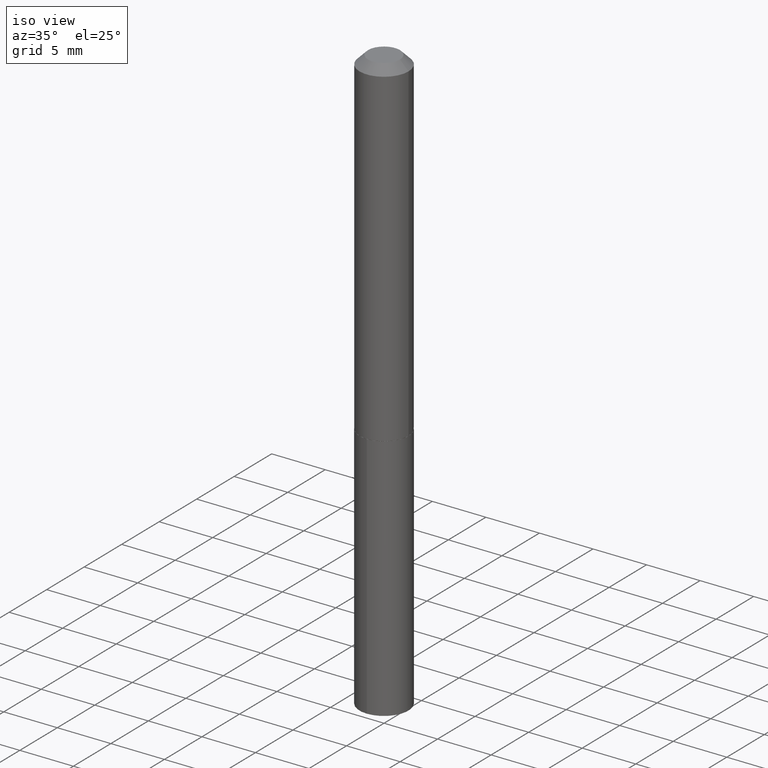
[diagram: clean part render]
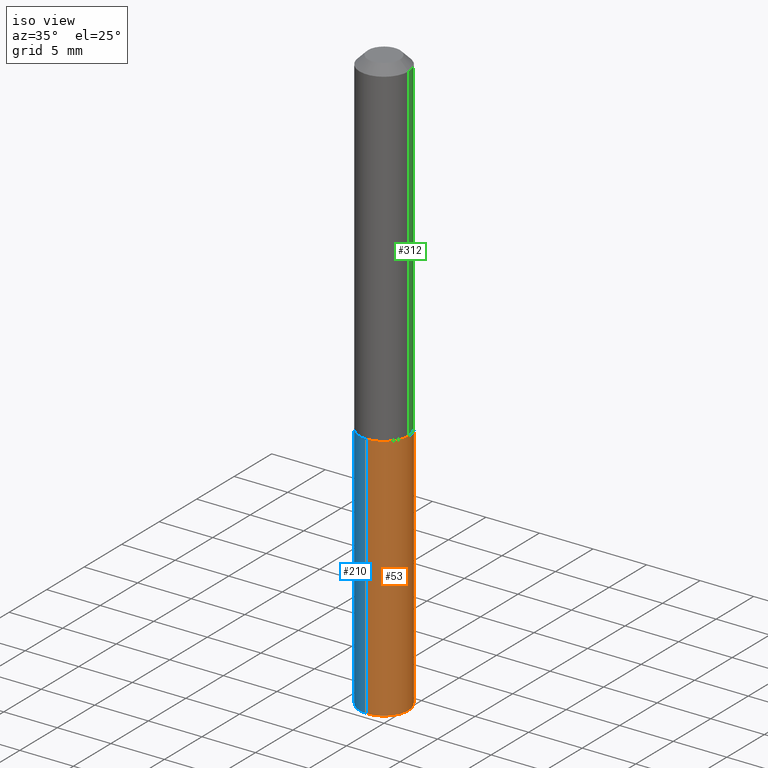
[diagram: same view with three faces highlighted in distinct colors, each labeled with its STEP entity id]
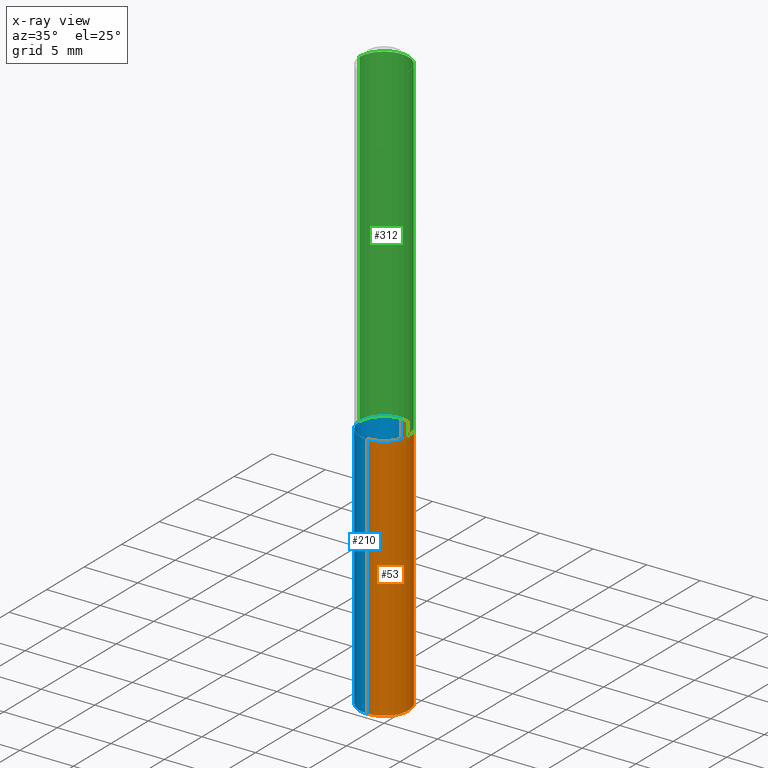
[diagram: x-ray of the same camera — body ghosted, the three highlighted faces saturated]
A machine part, iso view with three faces highlighted in distinct colors.
The next image is the same camera in x-ray (body ghosted, the three faces saturated) — at least one of them is partly hidden behind the body in this view.
Their STEP definitions:

[orange] entity #53 — the highlighted cylindrical surface (edge-blend (fillet) strip) has radius 2.286 mm, axis along (-0, 0, 1).
#5 = ORIENTED_EDGE ( 'NONE', *, *, #9, .F. ) ;
#8 = EDGE_CURVE ( 'NONE', #111, #316, #281, .T. ) ;
#9 = EDGE_CURVE ( 'NONE', #254, #341, #78, .T. ) ;
#10 = VECTOR ( 'NONE', #15, 39.37007874015748143 ) ;
#15 = DIRECTION ( 'NONE',  ( -2.445375402296307705E-29, 3.491615098528167601E-15, 1.000000000000000000 ) ) ;
#47 = EDGE_CURVE ( 'NONE', #254, #111, #56, .T. ) ;
#53 = ADVANCED_FACE ( 'NONE', ( #177 ), #206, .T. ) ;
#56 = CIRCLE ( 'NONE', #363, 0.08999999999999999667 ) ;
#60 = CARTESIAN_POINT ( 'NONE',  ( -6.284666409917110122E-16, -0.09000000000000749067, -2.154742678916041765 ) ) ;
#78 = LINE ( 'NONE', #288, #10 ) ;
#81 = DIRECTION ( 'NONE',  ( -2.445375402296307705E-29, 3.491615098528167601E-15, 1.000000000000000000 ) ) ;
#83 = DIRECTION ( 'NONE',  ( -6.982962677686265133E-15, -1.000000000000000000, 3.035386659626959132E-15 ) ) ;
#104 = DIRECTION ( 'NONE',  ( -6.982962677686265133E-15, -1.000000000000000000, 3.035386659626959132E-15 ) ) ;
#110 = AXIS2_PLACEMENT_3D ( 'NONE', #270, #81, #83 ) ;
#111 = VERTEX_POINT ( 'NONE', #349 ) ;
#129 = CARTESIAN_POINT ( 'NONE',  ( 3.038494991685032647E-29, -4.338165563512609129E-15, -1.242500000000000160 ) ) ;
#140 = DIRECTION ( 'NONE',  ( -2.445375402296307705E-29, 3.491615098528167601E-15, 1.000000000000000000 ) ) ;
#165 = EDGE_LOOP ( 'NONE', ( #373, #310, #204, #5 ) ) ;
#176 = VECTOR ( 'NONE', #140, 39.37007874015748143 ) ;
#177 = FACE_OUTER_BOUND ( 'NONE', #165, .T. ) ;
#180 = DIRECTION ( 'NONE',  ( -6.982962677686265133E-15, -1.000000000000000000, 3.035386659626959132E-15 ) ) ;
#191 = CARTESIAN_POINT ( 'NONE',  ( -6.284666409917335934E-16, -0.09000000000000432654, -1.242499999999999938 ) ) ;
#204 = ORIENTED_EDGE ( 'NONE', *, *, #383, .F. ) ;
#206 = CYLINDRICAL_SURFACE ( 'NONE', #110, 0.08999999999999999667 ) ;
#230 = CARTESIAN_POINT ( 'NONE',  ( 6.394884621841203175E-16, 0.08999999999999565292, -1.242500000000000382 ) ) ;
#233 = AXIS2_PLACEMENT_3D ( 'NONE', #129, #369, #104 ) ;
#254 = VERTEX_POINT ( 'NONE', #60 ) ;
#270 = CARTESIAN_POINT ( 'NONE',  ( 3.038494991685032647E-29, -4.338165563512609129E-15, -1.242500000000000160 ) ) ;
#281 = LINE ( 'NONE', #230, #176 ) ;
#288 = CARTESIAN_POINT ( 'NONE',  ( -6.284666409917335934E-16, -0.09000000000000432654, -1.242499999999999938 ) ) ;
#294 = DIRECTION ( 'NONE',  ( -2.445375402296307705E-29, 3.491615098528167601E-15, 1.000000000000000000 ) ) ;
#295 = CARTESIAN_POINT ( 'NONE',  ( 5.269270799631211184E-29, -7.523365874737645144E-15, -2.154742678916042209 ) ) ;
#310 = ORIENTED_EDGE ( 'NONE', *, *, #8, .T. ) ;
#316 = VERTEX_POINT ( 'NONE', #359 ) ;
#341 = VERTEX_POINT ( 'NONE', #191 ) ;
#349 = CARTESIAN_POINT ( 'NONE',  ( 6.394884621841425043E-16, 0.08999999999999243327, -2.154742678916042653 ) ) ;
#359 = CARTESIAN_POINT ( 'NONE',  ( 6.394884621841428987E-16, 0.08999999999999565292, -1.242500000000000382 ) ) ;
#363 = AXIS2_PLACEMENT_3D ( 'NONE', #295, #294, #180 ) ;
#369 = DIRECTION ( 'NONE',  ( -2.445375402296307705E-29, 3.491615098528167601E-15, 1.000000000000000000 ) ) ;
#373 = ORIENTED_EDGE ( 'NONE', *, *, #47, .T. ) ;
#381 = CIRCLE ( 'NONE', #233, 0.08999999999999999667 ) ;
#383 = EDGE_CURVE ( 'NONE', #341, #316, #381, .T. ) ;

[blue] entity #210 — the highlighted cylindrical surface (edge-blend (fillet) strip) has radius 2.286 mm, axis along (-0, 0, 1).
#2 = CARTESIAN_POINT ( 'NONE',  ( 5.269270799631211184E-29, -7.523365874737645144E-15, -2.154742678916042209 ) ) ;
#3 = DIRECTION ( 'NONE',  ( -6.982962677686265133E-15, -1.000000000000000000, 3.035386659626959132E-15 ) ) ;
#8 = EDGE_CURVE ( 'NONE', #111, #316, #281, .T. ) ;
#9 = EDGE_CURVE ( 'NONE', #254, #341, #78, .T. ) ;
#10 = VECTOR ( 'NONE', #15, 39.37007874015748143 ) ;
#15 = DIRECTION ( 'NONE',  ( -2.445375402296307705E-29, 3.491615098528167601E-15, 1.000000000000000000 ) ) ;
#16 = CIRCLE ( 'NONE', #128, 0.08999999999999999667 ) ;
#17 = DIRECTION ( 'NONE',  ( -2.445375402296307705E-29, 3.491615098528167601E-15, 1.000000000000000000 ) ) ;
#20 = AXIS2_PLACEMENT_3D ( 'NONE', #271, #367, #3 ) ;
#50 = DIRECTION ( 'NONE',  ( -6.982962677686265133E-15, -1.000000000000000000, 3.035386659626959132E-15 ) ) ;
#60 = CARTESIAN_POINT ( 'NONE',  ( -6.284666409917110122E-16, -0.09000000000000749067, -2.154742678916041765 ) ) ;
#78 = LINE ( 'NONE', #288, #10 ) ;
#80 = EDGE_CURVE ( 'NONE', #316, #341, #330, .T. ) ;
#95 = DIRECTION ( 'NONE',  ( -6.982962677686265133E-15, -1.000000000000000000, 3.035386659626959132E-15 ) ) ;
#111 = VERTEX_POINT ( 'NONE', #349 ) ;
#118 = CARTESIAN_POINT ( 'NONE',  ( 3.038494991685032647E-29, -4.338165563512609129E-15, -1.242500000000000160 ) ) ;
#127 = DIRECTION ( 'NONE',  ( -2.445375402296307705E-29, 3.491615098528167601E-15, 1.000000000000000000 ) ) ;
#128 = AXIS2_PLACEMENT_3D ( 'NONE', #2, #127, #95 ) ;
#140 = DIRECTION ( 'NONE',  ( -2.445375402296307705E-29, 3.491615098528167601E-15, 1.000000000000000000 ) ) ;
#162 = AXIS2_PLACEMENT_3D ( 'NONE', #118, #17, #50 ) ;
#164 = FACE_OUTER_BOUND ( 'NONE', #335, .T. ) ;
#174 = ORIENTED_EDGE ( 'NONE', *, *, #80, .F. ) ;
#176 = VECTOR ( 'NONE', #140, 39.37007874015748143 ) ;
#191 = CARTESIAN_POINT ( 'NONE',  ( -6.284666409917335934E-16, -0.09000000000000432654, -1.242499999999999938 ) ) ;
#196 = ORIENTED_EDGE ( 'NONE', *, *, #8, .F. ) ;
#203 = ORIENTED_EDGE ( 'NONE', *, *, #9, .T. ) ;
#210 = ADVANCED_FACE ( 'NONE', ( #164 ), #276, .T. ) ;
#225 = ORIENTED_EDGE ( 'NONE', *, *, #317, .T. ) ;
#230 = CARTESIAN_POINT ( 'NONE',  ( 6.394884621841203175E-16, 0.08999999999999565292, -1.242500000000000382 ) ) ;
#254 = VERTEX_POINT ( 'NONE', #60 ) ;
#271 = CARTESIAN_POINT ( 'NONE',  ( 3.038494991685032647E-29, -4.338165563512609129E-15, -1.242500000000000160 ) ) ;
#276 = CYLINDRICAL_SURFACE ( 'NONE', #20, 0.08999999999999999667 ) ;
#281 = LINE ( 'NONE', #230, #176 ) ;
#288 = CARTESIAN_POINT ( 'NONE',  ( -6.284666409917335934E-16, -0.09000000000000432654, -1.242499999999999938 ) ) ;
#316 = VERTEX_POINT ( 'NONE', #359 ) ;
#317 = EDGE_CURVE ( 'NONE', #111, #254, #16, .T. ) ;
#330 = CIRCLE ( 'NONE', #162, 0.08999999999999999667 ) ;
#335 = EDGE_LOOP ( 'NONE', ( #196, #225, #203, #174 ) ) ;
#341 = VERTEX_POINT ( 'NONE', #191 ) ;
#349 = CARTESIAN_POINT ( 'NONE',  ( 6.394884621841425043E-16, 0.08999999999999243327, -2.154742678916042653 ) ) ;
#359 = CARTESIAN_POINT ( 'NONE',  ( 6.394884621841428987E-16, 0.08999999999999565292, -1.242500000000000382 ) ) ;
#367 = DIRECTION ( 'NONE',  ( -2.445375402296307705E-29, 3.491615098528167601E-15, 1.000000000000000000 ) ) ;

[green] entity #312 — the highlighted cylindrical surface (edge-blend (fillet) strip) has radius 2.286 mm, axis along (-0, 0, 1).
#14 = EDGE_LOOP ( 'NONE', ( #262, #371, #256, #71 ) ) ;
#18 = DIRECTION ( 'NONE',  ( 1.000000000000000000, -6.982962677686263555E-15, 0.000000000000000000 ) ) ;
#19 = LINE ( 'NONE', #24, #380 ) ;
#24 = CARTESIAN_POINT ( 'NONE',  ( -0.09000000000000006606, 6.394884621840906367E-16, -4.427041581229418623E-30 ) ) ;
#63 = AXIS2_PLACEMENT_3D ( 'NONE', #121, #243, #157 ) ;
#64 = CARTESIAN_POINT ( 'NONE',  ( -0.09000000000000013545, -3.696931360659096890E-15, -1.242000000000000215 ) ) ;
#66 = DIRECTION ( 'NONE',  ( -2.445468806185136597E-29, 3.491481338843145583E-15, 1.000000000000000000 ) ) ;
#71 = ORIENTED_EDGE ( 'NONE', *, *, #342, .F. ) ;
#113 = EDGE_CURVE ( 'NONE', #197, #286, #122, .T. ) ;
#121 = CARTESIAN_POINT ( 'NONE',  ( 7.642090019328602662E-31, -1.091087918388490267E-16, -0.03125000000000020817 ) ) ;
#122 = CIRCLE ( 'NONE', #169, 0.09000000000000013545 ) ;
#126 = FACE_OUTER_BOUND ( 'NONE', #14, .T. ) ;
#134 = VERTEX_POINT ( 'NONE', #296 ) ;
#157 = DIRECTION ( 'NONE',  ( 1.000000000000000000, -6.982962677686266711E-15, 0.000000000000000000 ) ) ;
#169 = AXIS2_PLACEMENT_3D ( 'NONE', #208, #293, #18 ) ;
#170 = AXIS2_PLACEMENT_3D ( 'NONE', #224, #66, #193 ) ;
#178 = EDGE_CURVE ( 'NONE', #286, #134, #19, .T. ) ;
#186 = CYLINDRICAL_SURFACE ( 'NONE', #170, 0.09000000000000006606 ) ;
#190 = CIRCLE ( 'NONE', #63, 0.08999999999999999667 ) ;
#192 = DIRECTION ( 'NONE',  ( -2.445468806185136877E-29, 3.491481338843145188E-15, 1.000000000000000000 ) ) ;
#193 = DIRECTION ( 'NONE',  ( 1.000000000000000000, -6.982962677686266711E-15, 4.876176775795935793E-29 ) ) ;
#197 = VERTEX_POINT ( 'NONE', #269 ) ;
#208 = CARTESIAN_POINT ( 'NONE',  ( 3.037272257281940407E-29, -4.336419822843187625E-15, -1.242000000000000215 ) ) ;
#224 = CARTESIAN_POINT ( 'NONE',  ( 0.000000000000000000, 0.000000000000000000, 0.000000000000000000 ) ) ;
#235 = DIRECTION ( 'NONE',  ( -2.445468806185136877E-29, 3.491481338843145188E-15, 1.000000000000000000 ) ) ;
#243 = DIRECTION ( 'NONE',  ( -2.445468806185136597E-29, 3.491481338843145583E-15, 1.000000000000000000 ) ) ;
#256 = ORIENTED_EDGE ( 'NONE', *, *, #300, .F. ) ;
#262 = ORIENTED_EDGE ( 'NONE', *, *, #113, .T. ) ;
#267 = VECTOR ( 'NONE', #192, 39.37007874015748143 ) ;
#269 = CARTESIAN_POINT ( 'NONE',  ( 0.09000000000000013545, -4.964886463834952576E-15, -1.242000000000000215 ) ) ;
#274 = CARTESIAN_POINT ( 'NONE',  ( 0.08999999999999999667, -7.375754328306130652E-16, -0.03125000000000020817 ) ) ;
#286 = VERTEX_POINT ( 'NONE', #64 ) ;
#293 = DIRECTION ( 'NONE',  ( -2.445468806185136597E-29, 3.491481338843145583E-15, 1.000000000000000000 ) ) ;
#296 = CARTESIAN_POINT ( 'NONE',  ( -0.08999999999999999667, -1.583275845156927233E-15, -0.03125000000000020817 ) ) ;
#297 = LINE ( 'NONE', #326, #267 ) ;
#300 = EDGE_CURVE ( 'NONE', #314, #134, #190, .T. ) ;
#312 = ADVANCED_FACE ( 'NONE', ( #126 ), #186, .T. ) ;
#314 = VERTEX_POINT ( 'NONE', #274 ) ;
#326 = CARTESIAN_POINT ( 'NONE',  ( 0.09000000000000006606, -6.284666409917644575E-16, 4.388559098216345437E-30 ) ) ;
#342 = EDGE_CURVE ( 'NONE', #197, #314, #297, .T. ) ;
#371 = ORIENTED_EDGE ( 'NONE', *, *, #178, .T. ) ;
#380 = VECTOR ( 'NONE', #235, 39.37007874015748143 ) ;